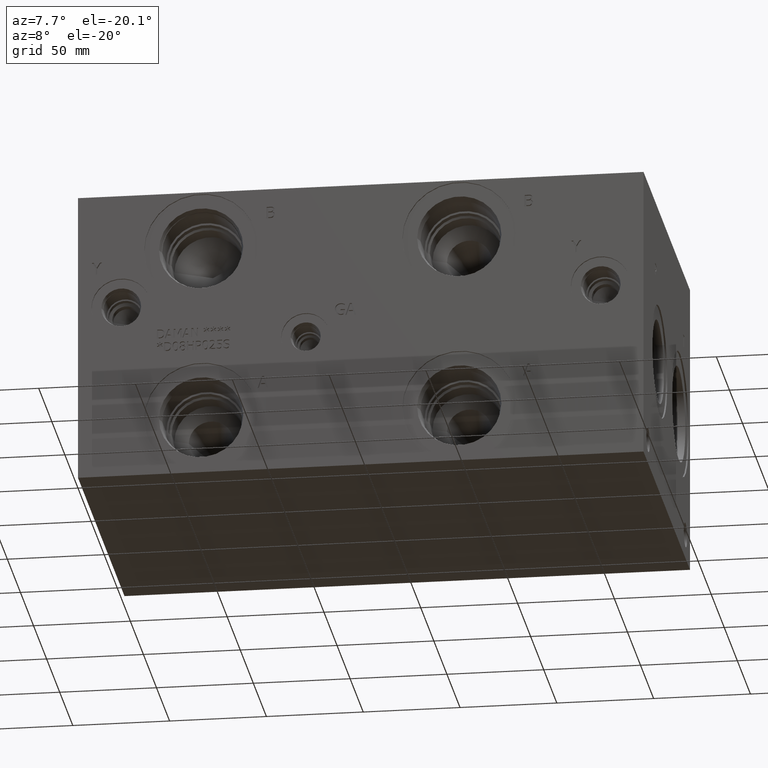
[diagram: clean part render]
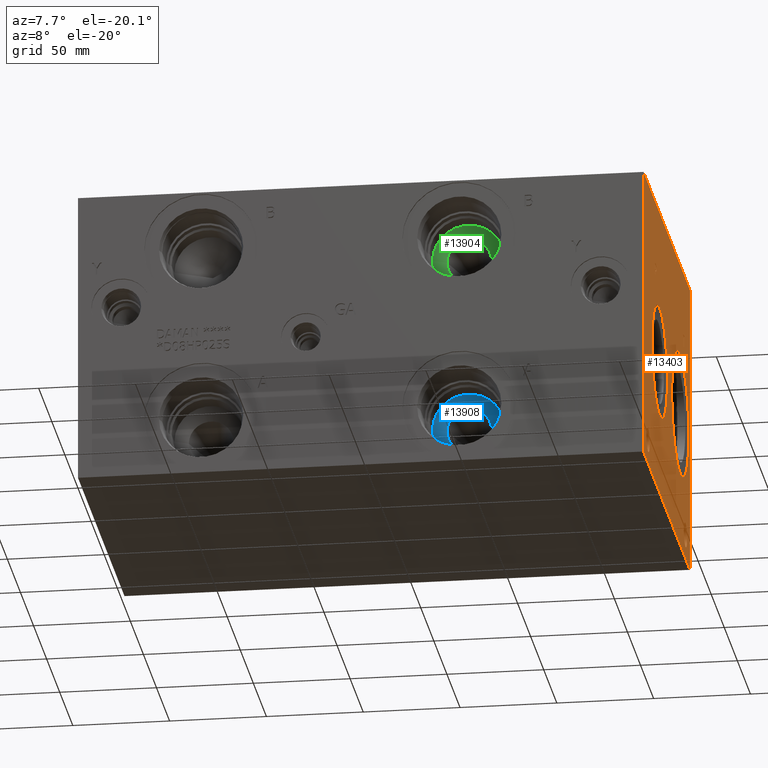
[diagram: same view with three faces highlighted in distinct colors, each labeled with its STEP entity id]
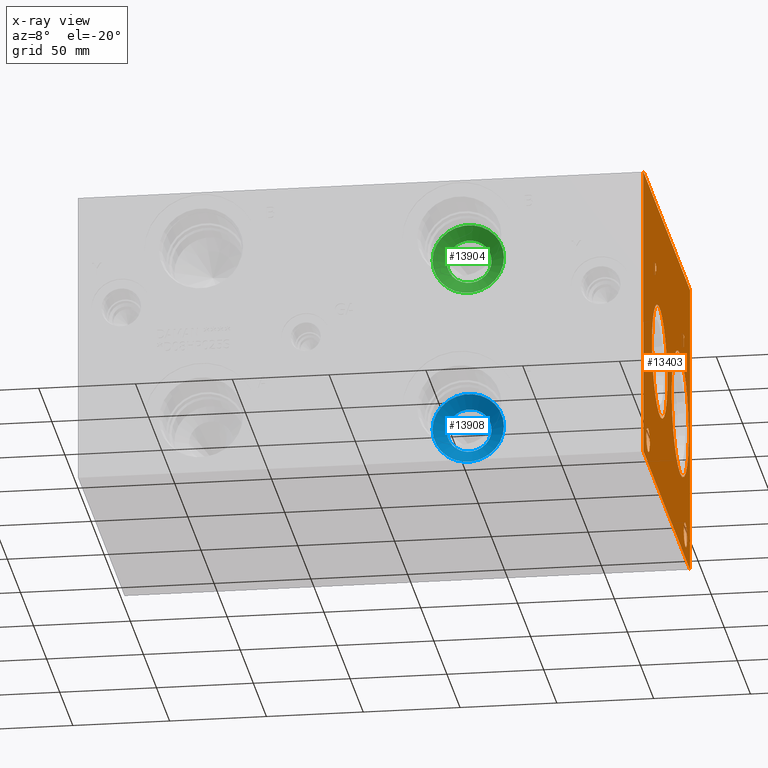
[diagram: x-ray of the same camera — body ghosted, the three highlighted faces saturated]
A machine part, auxiliary view with three faces highlighted in distinct colors.
The next image is the same camera in x-ray (body ghosted, the three faces saturated) — at least one of them is partly hidden behind the body in this view.
Their STEP definitions:

[orange] entity #13403 — the highlighted planar face has unit normal (1, 0, 0).
#203=CIRCLE('',#14125,32.5628);
#204=CIRCLE('',#14126,32.5628);
#205=CIRCLE('',#14127,29.2862);
#206=CIRCLE('',#14128,29.2862);
#207=CIRCLE('',#14129,6.35);
#208=CIRCLE('',#14130,6.35);
#209=CIRCLE('',#14131,6.35);
#210=CIRCLE('',#14132,6.35);
#700=B_SPLINE_CURVE_WITH_KNOTS('',2,(#19823,#19824,#19825,#19826),
 .UNSPECIFIED.,.F.,.F.,(3,1,3),(0.,1.,2.),.UNSPECIFIED.);
#702=B_SPLINE_CURVE_WITH_KNOTS('',2,(#19844,#19845,#19846,#19847),
 .UNSPECIFIED.,.F.,.F.,(3,1,3),(0.,1.,2.),.UNSPECIFIED.);
#704=B_SPLINE_CURVE_WITH_KNOTS('',2,(#19893,#19894,#19895,#19896),
 .UNSPECIFIED.,.F.,.F.,(3,1,3),(0.,1.,2.),.UNSPECIFIED.);
#706=B_SPLINE_CURVE_WITH_KNOTS('',2,(#19911,#19912,#19913,#19914),
 .UNSPECIFIED.,.F.,.F.,(3,1,3),(0.,1.,2.),.UNSPECIFIED.);
#1095=FACE_BOUND('',#2055,.T.);
#1096=FACE_BOUND('',#2056,.T.);
#1097=FACE_BOUND('',#2057,.T.);
#1098=FACE_BOUND('',#2058,.T.);
#1099=FACE_BOUND('',#2059,.T.);
#1100=FACE_BOUND('',#2060,.T.);
#1286=FACE_OUTER_BOUND('',#2054,.T.);
#2054=EDGE_LOOP('',(#9349,#9350,#9351,#9352));
#2055=EDGE_LOOP('',(#9353,#9354));
#2056=EDGE_LOOP('',(#9355,#9356));
#2057=EDGE_LOOP('',(#9357,#9358));
#2058=EDGE_LOOP('',(#9359,#9360));
#2059=EDGE_LOOP('',(#9361,#9362,#9363,#9364,#9365,#9366,#9367,#9368));
#2060=EDGE_LOOP('',(#9369,#9370,#9371,#9372,#9373,#9374,#9375,#9376,#9377));
#2839=LINE('',#18476,#4079);
#3154=LINE('',#19856,#4394);
#3157=LINE('',#19862,#4397);
#3160=LINE('',#19868,#4400);
#3163=LINE('',#19874,#4403);
#3166=LINE('',#19880,#4406);
#3170=LINE('',#19922,#4410);
#3171=LINE('',#19924,#4411);
#3172=LINE('',#19925,#4412);
#3173=LINE('',#19944,#4413);
#3174=LINE('',#19946,#4414);
#3175=LINE('',#19948,#4415);
#3176=LINE('',#19950,#4416);
#3177=LINE('',#19952,#4417);
#3178=LINE('',#19954,#4418);
#3179=LINE('',#19956,#4419);
#3180=LINE('',#19957,#4420);
#4079=VECTOR('',#15093,10.);
#4394=VECTOR('',#15516,10.);
#4397=VECTOR('',#15521,10.);
#4400=VECTOR('',#15526,10.);
#4403=VECTOR('',#15531,10.);
#4406=VECTOR('',#15536,10.);
#4410=VECTOR('',#15544,10.);
#4411=VECTOR('',#15545,10.);
#4412=VECTOR('',#15546,10.);
#4413=VECTOR('',#15563,10.);
#4414=VECTOR('',#15564,10.);
#4415=VECTOR('',#15565,10.);
#4416=VECTOR('',#15566,10.);
#4417=VECTOR('',#15567,10.);
#4418=VECTOR('',#15568,10.);
#4419=VECTOR('',#15569,10.);
#4420=VECTOR('',#15570,10.);
#5315=VERTEX_POINT('',#18473);
#5316=VERTEX_POINT('',#18475);
#5701=VERTEX_POINT('',#19821);
#5702=VERTEX_POINT('',#19822);
#5705=VERTEX_POINT('',#19843);
#5707=VERTEX_POINT('',#19855);
#5709=VERTEX_POINT('',#19861);
#5711=VERTEX_POINT('',#19867);
#5713=VERTEX_POINT('',#19873);
#5715=VERTEX_POINT('',#19879);
#5717=VERTEX_POINT('',#19892);
#5719=VERTEX_POINT('',#19921);
#5720=VERTEX_POINT('',#19923);
#5721=VERTEX_POINT('',#19926);
#5722=VERTEX_POINT('',#19927);
#5723=VERTEX_POINT('',#19930);
#5724=VERTEX_POINT('',#19931);
#5725=VERTEX_POINT('',#19934);
#5726=VERTEX_POINT('',#19935);
#5727=VERTEX_POINT('',#19938);
#5728=VERTEX_POINT('',#19939);
#5729=VERTEX_POINT('',#19942);
#5730=VERTEX_POINT('',#19943);
#5731=VERTEX_POINT('',#19945);
#5732=VERTEX_POINT('',#19947);
#5733=VERTEX_POINT('',#19949);
#5734=VERTEX_POINT('',#19951);
#5735=VERTEX_POINT('',#19953);
#5736=VERTEX_POINT('',#19955);
#6690=EDGE_CURVE('',#5315,#5316,#2839,.T.);
#7127=EDGE_CURVE('',#5701,#5702,#700,.T.);
#7131=EDGE_CURVE('',#5705,#5701,#702,.T.);
#7134=EDGE_CURVE('',#5707,#5705,#3154,.T.);
#7137=EDGE_CURVE('',#5709,#5707,#3157,.T.);
#7140=EDGE_CURVE('',#5711,#5709,#3160,.T.);
#7143=EDGE_CURVE('',#5713,#5711,#3163,.T.);
#7146=EDGE_CURVE('',#5715,#5713,#3166,.T.);
#7149=EDGE_CURVE('',#5717,#5715,#704,.T.);
#7152=EDGE_CURVE('',#5702,#5717,#706,.T.);
#7154=EDGE_CURVE('',#5315,#5719,#3170,.T.);
#7155=EDGE_CURVE('',#5719,#5720,#3171,.T.);
#7156=EDGE_CURVE('',#5316,#5720,#3172,.T.);
#7157=EDGE_CURVE('',#5721,#5722,#203,.T.);
#7158=EDGE_CURVE('',#5722,#5721,#204,.T.);
#7159=EDGE_CURVE('',#5723,#5724,#205,.T.);
#7160=EDGE_CURVE('',#5724,#5723,#206,.T.);
#7161=EDGE_CURVE('',#5725,#5726,#207,.T.);
#7162=EDGE_CURVE('',#5726,#5725,#208,.T.);
#7163=EDGE_CURVE('',#5727,#5728,#209,.T.);
#7164=EDGE_CURVE('',#5728,#5727,#210,.T.);
#7165=EDGE_CURVE('',#5729,#5730,#3173,.T.);
#7166=EDGE_CURVE('',#5730,#5731,#3174,.T.);
#7167=EDGE_CURVE('',#5731,#5732,#3175,.T.);
#7168=EDGE_CURVE('',#5732,#5733,#3176,.T.);
#7169=EDGE_CURVE('',#5733,#5734,#3177,.T.);
#7170=EDGE_CURVE('',#5734,#5735,#3178,.T.);
#7171=EDGE_CURVE('',#5735,#5736,#3179,.T.);
#7172=EDGE_CURVE('',#5736,#5729,#3180,.T.);
#9349=ORIENTED_EDGE('',*,*,#7154,.T.);
#9350=ORIENTED_EDGE('',*,*,#7155,.T.);
#9351=ORIENTED_EDGE('',*,*,#7156,.F.);
#9352=ORIENTED_EDGE('',*,*,#6690,.F.);
#9353=ORIENTED_EDGE('',*,*,#7157,.T.);
#9354=ORIENTED_EDGE('',*,*,#7158,.T.);
#9355=ORIENTED_EDGE('',*,*,#7159,.T.);
#9356=ORIENTED_EDGE('',*,*,#7160,.T.);
#9357=ORIENTED_EDGE('',*,*,#7161,.T.);
#9358=ORIENTED_EDGE('',*,*,#7162,.T.);
#9359=ORIENTED_EDGE('',*,*,#7163,.T.);
#9360=ORIENTED_EDGE('',*,*,#7164,.T.);
#9361=ORIENTED_EDGE('',*,*,#7165,.T.);
#9362=ORIENTED_EDGE('',*,*,#7166,.T.);
#9363=ORIENTED_EDGE('',*,*,#7167,.T.);
#9364=ORIENTED_EDGE('',*,*,#7168,.T.);
#9365=ORIENTED_EDGE('',*,*,#7169,.T.);
#9366=ORIENTED_EDGE('',*,*,#7170,.T.);
#9367=ORIENTED_EDGE('',*,*,#7171,.T.);
#9368=ORIENTED_EDGE('',*,*,#7172,.T.);
#9369=ORIENTED_EDGE('',*,*,#7127,.T.);
#9370=ORIENTED_EDGE('',*,*,#7152,.T.);
#9371=ORIENTED_EDGE('',*,*,#7149,.T.);
#9372=ORIENTED_EDGE('',*,*,#7146,.T.);
#9373=ORIENTED_EDGE('',*,*,#7143,.T.);
#9374=ORIENTED_EDGE('',*,*,#7140,.T.);
#9375=ORIENTED_EDGE('',*,*,#7137,.T.);
#9376=ORIENTED_EDGE('',*,*,#7134,.T.);
#9377=ORIENTED_EDGE('',*,*,#7131,.T.);
#12485=PLANE('',#14124);
#13403=ADVANCED_FACE('',(#1286,#1095,#1096,#1097,#1098,#1099,#1100),#12485,
 .T.);
#14124=AXIS2_PLACEMENT_3D('',#19920,#15542,#15543);
#14125=AXIS2_PLACEMENT_3D('',#19928,#15547,#15548);
#14126=AXIS2_PLACEMENT_3D('',#19929,#15549,#15550);
#14127=AXIS2_PLACEMENT_3D('',#19932,#15551,#15552);
#14128=AXIS2_PLACEMENT_3D('',#19933,#15553,#15554);
#14129=AXIS2_PLACEMENT_3D('',#19936,#15555,#15556);
#14130=AXIS2_PLACEMENT_3D('',#19937,#15557,#15558);
#14131=AXIS2_PLACEMENT_3D('',#19940,#15559,#15560);
#14132=AXIS2_PLACEMENT_3D('',#19941,#15561,#15562);
#15093=DIRECTION('',(0.,0.,1.));
#15516=DIRECTION('',(0.,1.,0.));
#15521=DIRECTION('',(0.,0.,1.));
#15526=DIRECTION('',(0.,-1.,0.));
#15531=DIRECTION('',(0.,0.,-1.));
#15536=DIRECTION('',(0.,-1.,0.));
#15542=DIRECTION('center_axis',(1.,0.,0.));
#15543=DIRECTION('ref_axis',(0.,1.,0.));
#15544=DIRECTION('',(0.,1.,0.));
#15545=DIRECTION('',(0.,0.,1.));
#15546=DIRECTION('',(0.,1.,0.));
#15547=DIRECTION('center_axis',(-1.,0.,0.));
#15548=DIRECTION('ref_axis',(0.,0.,-1.));
#15549=DIRECTION('center_axis',(-1.,0.,0.));
#15550=DIRECTION('ref_axis',(0.,0.,-1.));
#15551=DIRECTION('center_axis',(-1.,0.,0.));
#15552=DIRECTION('ref_axis',(0.,1.,0.));
#15553=DIRECTION('center_axis',(-1.,0.,0.));
#15554=DIRECTION('ref_axis',(0.,1.,0.));
#15555=DIRECTION('center_axis',(-1.,0.,0.));
#15556=DIRECTION('ref_axis',(0.,1.,0.));
#15557=DIRECTION('center_axis',(-1.,0.,0.));
#15558=DIRECTION('ref_axis',(0.,1.,0.));
#15559=DIRECTION('center_axis',(-1.,0.,0.));
#15560=DIRECTION('ref_axis',(0.,1.,0.));
#15561=DIRECTION('center_axis',(-1.,0.,0.));
#15562=DIRECTION('ref_axis',(0.,1.,0.));
#15563=DIRECTION('',(0.,-1.,0.));
#15564=DIRECTION('',(0.,0.,1.));
#15565=DIRECTION('',(0.,-1.,0.));
#15566=DIRECTION('',(0.,0.,1.));
#15567=DIRECTION('',(0.,1.,0.));
#15568=DIRECTION('',(0.,0.,-1.));
#15569=DIRECTION('',(0.,-1.,0.));
#15570=DIRECTION('',(0.,0.,-1.));
#18473=CARTESIAN_POINT('',(292.1,0.,0.));
#18475=CARTESIAN_POINT('',(292.1,0.,152.4));
#18476=CARTESIAN_POINT('',(292.1,0.,0.));
#19821=CARTESIAN_POINT('',(292.1,48.2997672023594,118.780568143971));
#19822=CARTESIAN_POINT('',(292.1,49.056209654532,117.262537372604));
#19823=CARTESIAN_POINT('Ctrl Pts',(292.1,48.2997672023594,118.780568143971));
#19824=CARTESIAN_POINT('Ctrl Pts',(292.1,48.6548320268486,118.538712393956));
#19825=CARTESIAN_POINT('Ctrl Pts',(292.1,49.056209654532,117.792561675827));
#19826=CARTESIAN_POINT('Ctrl Pts',(292.1,49.056209654532,117.262537372604));
#19843=CARTESIAN_POINT('',(292.1,46.6376521543883,119.176799904633));
#19844=CARTESIAN_POINT('Ctrl Pts',(292.1,46.6376521543883,119.176799904633));
#19845=CARTESIAN_POINT('Ctrl Pts',(292.1,47.2036975267624,119.176799904633));
#19846=CARTESIAN_POINT('Ctrl Pts',(292.1,47.996161048086,118.991548691856));
#19847=CARTESIAN_POINT('Ctrl Pts',(292.1,48.2997672023594,118.780568143971));
#19855=CARTESIAN_POINT('',(292.1,45.0424333776978,119.176799904633));
#19856=CARTESIAN_POINT('',(292.1,22.5212166888489,119.176799904633));
#19861=CARTESIAN_POINT('',(292.1,45.0424333776978,112.8268));
#19862=CARTESIAN_POINT('',(292.1,45.0424333776978,56.4134));
#19867=CARTESIAN_POINT('',(292.1,45.8863555692373,112.8268));
#19868=CARTESIAN_POINT('',(292.1,22.9431777846186,112.8268));
#19873=CARTESIAN_POINT('',(292.1,45.8863555692373,115.193898829928));
#19874=CARTESIAN_POINT('',(292.1,45.8863555692373,57.5969494149639));
#19879=CARTESIAN_POINT('',(292.1,46.6016310852372,115.193898829928));
#19880=CARTESIAN_POINT('',(292.1,23.3008155426186,115.193898829928));
#19892=CARTESIAN_POINT('',(292.1,48.5004560162011,115.85256980869));
#19893=CARTESIAN_POINT('Ctrl Pts',(292.1,48.5004560162011,115.85256980869));
#19894=CARTESIAN_POINT('Ctrl Pts',(292.1,48.1711205268198,115.528380186331));
#19895=CARTESIAN_POINT('Ctrl Pts',(292.1,47.2808855320861,115.193898829928));
#19896=CARTESIAN_POINT('Ctrl Pts',(292.1,46.6016310852372,115.193898829928));
#19911=CARTESIAN_POINT('Ctrl Pts',(292.1,49.056209654532,117.262537372604));
#19912=CARTESIAN_POINT('Ctrl Pts',(292.1,49.056209654532,116.850868010877));
#19913=CARTESIAN_POINT('Ctrl Pts',(292.1,48.7628952343018,116.10986315977));
#19914=CARTESIAN_POINT('Ctrl Pts',(292.1,48.5004560162011,115.85256980869));
#19920=CARTESIAN_POINT('Origin',(292.1,0.,0.));
#19921=CARTESIAN_POINT('',(292.1,177.8,0.));
#19922=CARTESIAN_POINT('',(292.1,0.,0.));
#19923=CARTESIAN_POINT('',(292.1,177.8,152.4));
#19924=CARTESIAN_POINT('',(292.1,177.8,0.));
#19925=CARTESIAN_POINT('',(292.1,0.,152.4));
#19926=CARTESIAN_POINT('',(292.1,140.4874,38.862));
#19927=CARTESIAN_POINT('',(292.1,140.4874,103.9876));
#19928=CARTESIAN_POINT('Origin',(292.1,140.4874,71.4248));
#19929=CARTESIAN_POINT('Origin',(292.1,140.4874,71.4248));
#19930=CARTESIAN_POINT('',(292.1,91.2114,71.4248));
#19931=CARTESIAN_POINT('',(292.1,32.639,71.4248));
#19932=CARTESIAN_POINT('Origin',(292.1,61.9252,71.4248));
#19933=CARTESIAN_POINT('Origin',(292.1,61.9252,71.4248));
#19934=CARTESIAN_POINT('',(292.1,166.6748,12.7));
#19935=CARTESIAN_POINT('',(292.1,153.9748,12.7));
#19936=CARTESIAN_POINT('Origin',(292.1,160.3248,12.7));
#19937=CARTESIAN_POINT('Origin',(292.1,160.3248,12.7));
#19938=CARTESIAN_POINT('',(292.1,23.8252,12.7));
#19939=CARTESIAN_POINT('',(292.1,11.1252,12.7));
#19940=CARTESIAN_POINT('Origin',(292.1,17.4752,12.7));
#19941=CARTESIAN_POINT('Origin',(292.1,17.4752,12.7));
#19942=CARTESIAN_POINT('',(292.1,154.632565271453,112.8268));
#19943=CARTESIAN_POINT('',(292.1,153.788643079913,112.8268));
#19944=CARTESIAN_POINT('',(292.1,77.3162826357265,112.8268));
#19945=CARTESIAN_POINT('',(292.1,153.788643079913,118.425503319482));
#19946=CARTESIAN_POINT('',(292.1,153.788643079913,56.4134));
#19947=CARTESIAN_POINT('',(292.1,151.658254132978,118.425503319482));
#19948=CARTESIAN_POINT('',(292.1,76.8943215399567,118.425503319482));
#19949=CARTESIAN_POINT('',(292.1,151.658254132978,119.176799904633));
#19950=CARTESIAN_POINT('',(292.1,151.658254132978,59.2127516597408));
#19951=CARTESIAN_POINT('',(292.1,156.762954218388,119.176799904633));
#19952=CARTESIAN_POINT('',(292.1,75.8291270664892,119.176799904633));
#19953=CARTESIAN_POINT('',(292.1,156.762954218388,118.425503319482));
#19954=CARTESIAN_POINT('',(292.1,156.762954218388,59.5883999523163));
#19955=CARTESIAN_POINT('',(292.1,154.632565271453,118.425503319482));
#19956=CARTESIAN_POINT('',(292.1,78.381477109194,118.425503319482));
#19957=CARTESIAN_POINT('',(292.1,154.632565271453,59.2127516597408));

[blue] entity #13908 — the highlighted conical surface has half-angle 60 deg.
#149=CONICAL_SURFACE('',#14664,9.22655,1.0471975511966);
#367=CIRCLE('',#14665,18.4531);
#368=CIRCLE('',#14666,11.5262434037684);
#369=CIRCLE('',#14667,18.4531);
#1791=FACE_OUTER_BOUND('',#2602,.T.);
#2602=EDGE_LOOP('',(#11794,#11795,#11796,#11797,#11798));
#3912=LINE('',#23621,#5152);
#5152=VECTOR('',#17368,9.22655);
#6369=VERTEX_POINT('',#23617);
#6370=VERTEX_POINT('',#23618);
#6371=VERTEX_POINT('',#23620);
#8243=EDGE_CURVE('',#6369,#6370,#367,.T.);
#8244=EDGE_CURVE('',#6370,#6371,#3912,.T.);
#8245=EDGE_CURVE('',#6371,#6371,#368,.T.);
#8246=EDGE_CURVE('',#6370,#6369,#369,.T.);
#11794=ORIENTED_EDGE('',*,*,#8243,.T.);
#11795=ORIENTED_EDGE('',*,*,#8244,.T.);
#11796=ORIENTED_EDGE('',*,*,#8245,.F.);
#11797=ORIENTED_EDGE('',*,*,#8244,.F.);
#11798=ORIENTED_EDGE('',*,*,#8246,.T.);
#13908=ADVANCED_FACE('',(#1791),#149,.F.);
#14664=AXIS2_PLACEMENT_3D('',#23616,#17364,#17365);
#14665=AXIS2_PLACEMENT_3D('',#23619,#17366,#17367);
#14666=AXIS2_PLACEMENT_3D('',#23622,#17369,#17370);
#14667=AXIS2_PLACEMENT_3D('',#23623,#17371,#17372);
#17364=DIRECTION('center_axis',(0.,-1.,0.));
#17365=DIRECTION('ref_axis',(1.,0.,0.));
#17366=DIRECTION('center_axis',(0.,-1.,0.));
#17367=DIRECTION('ref_axis',(1.,0.,0.));
#17368=DIRECTION('',(0.866025403784439,0.5,1.06057523872491E-16));
#17369=DIRECTION('center_axis',(0.,-1.,0.));
#17370=DIRECTION('ref_axis',(1.,0.,0.));
#17371=DIRECTION('center_axis',(0.,-1.,0.));
#17372=DIRECTION('ref_axis',(1.,0.,0.));
#23616=CARTESIAN_POINT('Origin',(196.85,40.3024011261915,30.1752));
#23617=CARTESIAN_POINT('',(215.3031,34.97545,30.1752));
#23618=CARTESIAN_POINT('',(178.3969,34.97545,30.1752));
#23619=CARTESIAN_POINT('Origin',(196.85,34.97545,30.1752));
#23620=CARTESIAN_POINT('',(185.323756596232,38.9746725204722,30.1752));
#23621=CARTESIAN_POINT('',(187.62345,40.3024011261915,30.1752));
#23622=CARTESIAN_POINT('Origin',(196.85,38.9746725204722,30.1752));
#23623=CARTESIAN_POINT('Origin',(196.85,34.97545,30.1752));

[green] entity #13904 — the highlighted conical surface has half-angle 60 deg.
#147=CONICAL_SURFACE('',#14652,9.22655,1.0471975511966);
#359=CIRCLE('',#14653,18.4531);
#360=CIRCLE('',#14654,11.5262434037684);
#361=CIRCLE('',#14655,18.4531);
#1787=FACE_OUTER_BOUND('',#2598,.T.);
#2598=EDGE_LOOP('',(#11774,#11775,#11776,#11777,#11778));
#3908=LINE('',#23597,#5148);
#5148=VECTOR('',#17340,9.22655);
#6361=VERTEX_POINT('',#23593);
#6362=VERTEX_POINT('',#23594);
#6363=VERTEX_POINT('',#23596);
#8231=EDGE_CURVE('',#6361,#6362,#359,.T.);
#8232=EDGE_CURVE('',#6362,#6363,#3908,.T.);
#8233=EDGE_CURVE('',#6363,#6363,#360,.T.);
#8234=EDGE_CURVE('',#6362,#6361,#361,.T.);
#11774=ORIENTED_EDGE('',*,*,#8231,.T.);
#11775=ORIENTED_EDGE('',*,*,#8232,.T.);
#11776=ORIENTED_EDGE('',*,*,#8233,.F.);
#11777=ORIENTED_EDGE('',*,*,#8232,.F.);
#11778=ORIENTED_EDGE('',*,*,#8234,.T.);
#13904=ADVANCED_FACE('',(#1787),#147,.F.);
#14652=AXIS2_PLACEMENT_3D('',#23592,#17336,#17337);
#14653=AXIS2_PLACEMENT_3D('',#23595,#17338,#17339);
#14654=AXIS2_PLACEMENT_3D('',#23598,#17341,#17342);
#14655=AXIS2_PLACEMENT_3D('',#23599,#17343,#17344);
#17336=DIRECTION('center_axis',(0.,-1.,0.));
#17337=DIRECTION('ref_axis',(1.,0.,0.));
#17338=DIRECTION('center_axis',(0.,-1.,0.));
#17339=DIRECTION('ref_axis',(1.,0.,0.));
#17340=DIRECTION('',(0.866025403784439,0.5,1.06057523872491E-16));
#17341=DIRECTION('center_axis',(0.,-1.,0.));
#17342=DIRECTION('ref_axis',(1.,0.,0.));
#17343=DIRECTION('center_axis',(0.,-1.,0.));
#17344=DIRECTION('ref_axis',(1.,0.,0.));
#23592=CARTESIAN_POINT('Origin',(196.85,40.3024011261915,122.2248));
#23593=CARTESIAN_POINT('',(215.3031,34.97545,122.2248));
#23594=CARTESIAN_POINT('',(178.3969,34.97545,122.2248));
#23595=CARTESIAN_POINT('Origin',(196.85,34.97545,122.2248));
#23596=CARTESIAN_POINT('',(185.323756596232,38.9746725204722,122.2248));
#23597=CARTESIAN_POINT('',(187.62345,40.3024011261915,122.2248));
#23598=CARTESIAN_POINT('Origin',(196.85,38.9746725204722,122.2248));
#23599=CARTESIAN_POINT('Origin',(196.85,34.97545,122.2248));